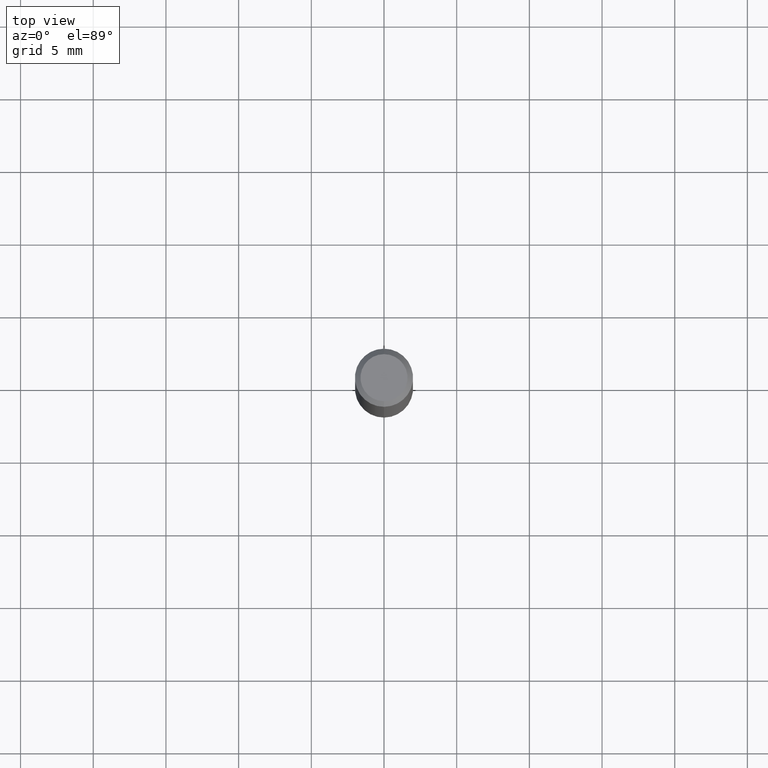
[diagram: clean part render]
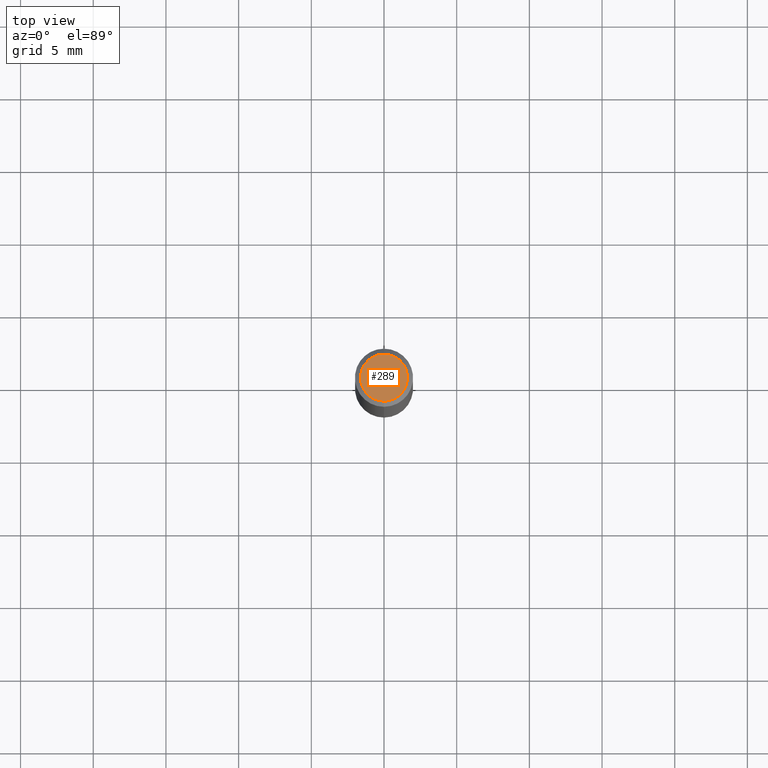
[diagram: same view with one face highlighted and labeled with its STEP entity id]
A machine part, top view. The second image highlights one B-rep face of the part: STEP entity #289.
In plain terms, the highlighted planar face has unit normal (0, -0, -1).
Its self-contained STEP definition (entity closure, byte-faithful):
#2 = VERTEX_POINT ( 'NONE', #449 ) ;
#32 = CARTESIAN_POINT ( 'NONE',  ( 2.589334612204455354E-45, -3.697021528363617418E-31, -1.058849265364624943E-16 ) ) ;
#47 = DIRECTION ( 'NONE',  ( 2.445423250412127969E-29, -3.491546577302966933E-15, -1.000000000000000000 ) ) ;
#86 = FACE_OUTER_BOUND ( 'NONE', #338, .T. ) ;
#130 = PLANE ( 'NONE',  #327 ) ;
#136 = DIRECTION ( 'NONE',  ( -6.982962677686264344E-15, -1.000000000000000000, 3.491546577302966539E-15 ) ) ;
#152 = CARTESIAN_POINT ( 'NONE',  ( 4.975360907851465623E-16, 0.06375000000000000111, -3.284710208395266353E-16 ) ) ;
#195 = CIRCLE ( 'NONE', #276, 0.06375000000000000111 ) ;
#202 = ORIENTED_EDGE ( 'NONE', *, *, #246, .T. ) ;
#233 = DIRECTION ( 'NONE',  ( -2.445423250412128530E-29, 3.491546577302966933E-15, 1.000000000000000000 ) ) ;
#237 = VERTEX_POINT ( 'NONE', #152 ) ;
#246 = EDGE_CURVE ( 'NONE', #2, #237, #195, .T. ) ;
#276 = AXIS2_PLACEMENT_3D ( 'NONE', #32, #233, #397 ) ;
#278 = EDGE_CURVE ( 'NONE', #237, #2, #331, .T. ) ;
#288 = AXIS2_PLACEMENT_3D ( 'NONE', #369, #450, #136 ) ;
#289 = ADVANCED_FACE ( 'NONE', ( #86 ), #130, .F. ) ;
#291 = DIRECTION ( 'NONE',  ( 6.982962677686265922E-15, 1.000000000000000000, -3.491546577302966933E-15 ) ) ;
#327 = AXIS2_PLACEMENT_3D ( 'NONE', #411, #47, #291 ) ;
#331 = CIRCLE ( 'NONE', #288, 0.06375000000000000111 ) ;
#338 = EDGE_LOOP ( 'NONE', ( #378, #202 ) ) ;
#369 = CARTESIAN_POINT ( 'NONE',  ( 2.589334612204455354E-45, -3.697021528363617418E-31, -1.058849265364624943E-16 ) ) ;
#378 = ORIENTED_EDGE ( 'NONE', *, *, #278, .T. ) ;
#397 = DIRECTION ( 'NONE',  ( -6.982962677686264344E-15, -1.000000000000000000, 3.491546577302966539E-15 ) ) ;
#411 = CARTESIAN_POINT ( 'NONE',  ( 4.451638707024993845E-16, 0.06375000000000000111, -2.755285575712953512E-16 ) ) ;
#449 = CARTESIAN_POINT ( 'NONE',  ( -4.888104823412213911E-16, -0.06375000000000000111, 1.167011677666016220E-16 ) ) ;
#450 = DIRECTION ( 'NONE',  ( -2.445423250412128530E-29, 3.491546577302966933E-15, 1.000000000000000000 ) ) ;